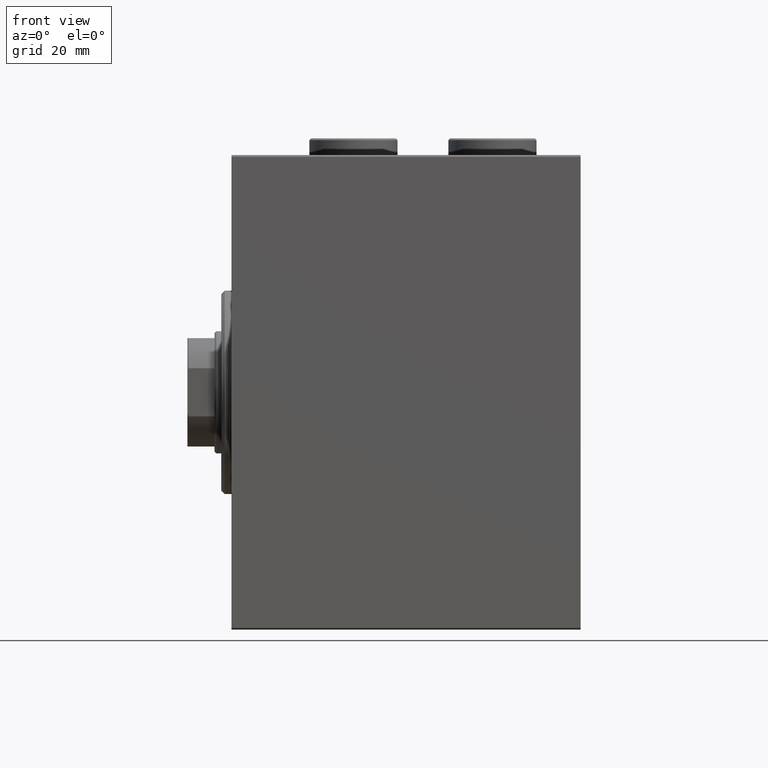
[diagram: clean part render]
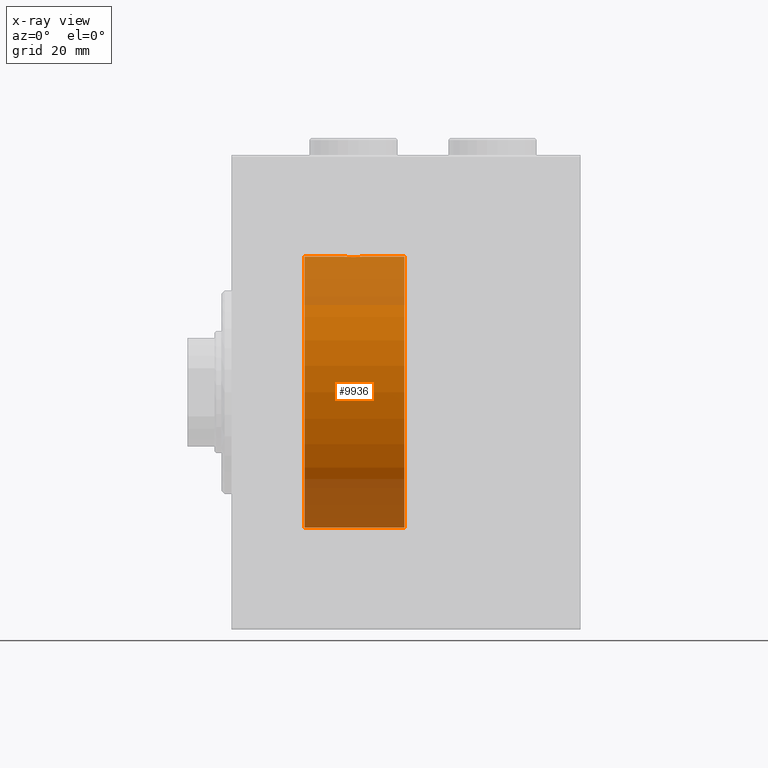
[diagram: x-ray — body ghosted, one internal face saturated and labeled with its STEP entity id]
A machine part, front view, then the same camera in x-ray: the body is ghosted and one INTERNAL B-rep face — a face not visible from any outside direction — is saturated and labeled: STEP entity #9936.
In plain terms, the highlighted cylindrical surface (partial cylindrical patch) has radius 40 mm, axis along (-1, -0, -0).
Its self-contained STEP definition (entity closure, byte-faithful):
#37 = VERTEX_POINT ( 'NONE', #36218 ) ;
#225 = CARTESIAN_POINT ( 'NONE',  ( 38.90425173651351543, -0.7773146824710984726, -39.99291453282344122 ) ) ;
#677 = CARTESIAN_POINT ( 'NONE',  ( 35.80439468926913804, -3.000157693440631324, -39.88732948994960026 ) ) ;
#774 = B_SPLINE_CURVE_WITH_KNOTS ( 'NONE', 3,
 ( #41025, #38028, #30449, #23773, #12962, #30223, #38260, #33910, #6754, #3292, #6523, #34821, #2386, #5845, #12739, #26766, #40795, #9276, #2834, #23309, #26986, #19870, #37345, #44481, #6075, #9512, #27212, #3065, #23542, #37578, #34362, #20101 ),
 .UNSPECIFIED., .F., .F.,
 ( 4, 2, 2, 2, 2, 2, 2, 2, 2, 2, 2, 2, 2, 2, 2, 4 ),
 ( 0.009382660366305094896, 0.009968941372944132434, 0.01055522237958316824, 0.01114150338622220404, 0.01172778439286124158, 0.01231406539950027912, 0.01290034640613931492, 0.01348662741277835073, 0.01407290841941738826, 0.01465918942605642580, 0.01524547043269546161, 0.01583175143933449741, 0.01641803244597353495, 0.01700431345261257249, 0.01759059445925161003, 0.01876315647252968163 ),
 .UNSPECIFIED. ) ;
#1171 = CARTESIAN_POINT ( 'NONE',  ( 51.00000000000000711, 0.000000000000000000, 40.00000000000000000 ) ) ;
#1359 = DIRECTION ( 'NONE',  ( -1.000000000000000000, 0.000000000000000000, 0.000000000000000000 ) ) ;
#2386 = CARTESIAN_POINT ( 'NONE',  ( 34.66775731134134730, -2.695129988695740053, 39.90917164320281785 ) ) ;
#2834 = CARTESIAN_POINT ( 'NONE',  ( 36.39109692509332916, -2.980812880639903906, 39.88879797994688658 ) ) ;
#3065 = CARTESIAN_POINT ( 'NONE',  ( 38.60188728128492386, -1.506322235190791226, 39.97196309111975410 ) ) ;
#3292 = CARTESIAN_POINT ( 'NONE',  ( 34.01538552187719233, -2.258217541132904849, 39.93644519243652979 ) ) ;
#5307 = CARTESIAN_POINT ( 'NONE',  ( 51.00000000000000711, 0.000000000000000000, 40.00000000000000000 ) ) ;
#5556 = EDGE_CURVE ( 'NONE', #37, #43692, #16543, .T. ) ;
#5845 = CARTESIAN_POINT ( 'NONE',  ( 35.03061658105534093, -2.845855236045346626, 39.89870693240651178 ) ) ;
#6075 = CARTESIAN_POINT ( 'NONE',  ( 37.98136279514228875, -2.261082456166712440, 39.93628274425758207 ) ) ;
#6523 = CARTESIAN_POINT ( 'NONE',  ( 34.16955177177597847, -2.384933850258112553, 39.92898715513240404 ) ) ;
#6584 = VECTOR ( 'NONE', #9192, 1000.000000000000000 ) ;
#6754 = CARTESIAN_POINT ( 'NONE',  ( 33.73902383005257377, -1.981471132463168638, 39.95113231465138881 ) ) ;
#7128 = CARTESIAN_POINT ( 'NONE',  ( 32.99999999999998579, -0.3964922677423637909, -39.99999999999998579 ) ) ;
#7476 = CARTESIAN_POINT ( 'NONE',  ( 21.60000000000000142, 4.898587196589413026E-15, -40.00000000000000000 ) ) ;
#7720 = DIRECTION ( 'NONE',  ( 0.000000000000000000, 0.000000000000000000, 1.000000000000000000 ) ) ;
#7804 = CARTESIAN_POINT ( 'NONE',  ( 38.98101877110926239, -0.3904143323715931757, -39.99856256910221219 ) ) ;
#8188 = ORIENTED_EDGE ( 'NONE', *, *, #20865, .F. ) ;
#8255 = ORIENTED_EDGE ( 'NONE', *, *, #32308, .T. ) ;
#8999 = CARTESIAN_POINT ( 'NONE',  ( 51.00000000000000711, 0.000000000000000000, 40.00000000000000000 ) ) ;
#9084 = VERTEX_POINT ( 'NONE', #8999 ) ;
#9192 = DIRECTION ( 'NONE',  ( -1.000000000000000000, -0.000000000000000000, -0.000000000000000000 ) ) ;
#9276 = CARTESIAN_POINT ( 'NONE',  ( 36.19560531073085485, -3.000157693440645090, 39.88732948994960026 ) ) ;
#9512 = CARTESIAN_POINT ( 'NONE',  ( 38.25829670320502629, -1.984537326394312018, 39.95097977400578060 ) ) ;
#9634 = AXIS2_PLACEMENT_3D ( 'NONE', #32874, #1359, #15391 ) ;
#9640 = DIRECTION ( 'NONE',  ( -1.000000000000000000, -0.000000000000000000, -0.000000000000000000 ) ) ;
#9936 = ADVANCED_FACE ( 'NONE', ( #39458 ), #22202, .F. ) ;
#10583 = CARTESIAN_POINT ( 'NONE',  ( 34.01863720485770415, -2.261082456166700005, -39.93628274425758917 ) ) ;
#10809 = CARTESIAN_POINT ( 'NONE',  ( 36.20041286019198168, -2.999840380514735116, -39.88735335562824957 ) ) ;
#11035 = CARTESIAN_POINT ( 'NONE',  ( 33.07973825008353685, -0.7903958539027382546, -39.99381900068937767 ) ) ;
#11775 = CARTESIAN_POINT ( 'NONE',  ( 39.00000000000000000, -4.750840494920854782E-16, 40.00000000000000000 ) ) ;
#11992 = LINE ( 'NONE', #5307, #6584 ) ;
#12304 = EDGE_CURVE ( 'NONE', #43692, #22536, #18419, .T. ) ;
#12739 = CARTESIAN_POINT ( 'NONE',  ( 35.22130476584258219, -2.903766417398241373, 39.89448096967571189 ) ) ;
#12826 = VERTEX_POINT ( 'NONE', #11775 ) ;
#12962 = CARTESIAN_POINT ( 'NONE',  ( 33.15334726986859692, -0.9668189122103379995, 39.98872185468384544 ) ) ;
#13107 = EDGE_CURVE ( 'NONE', #40347, #37, #24829, .T. ) ;
#13233 = EDGE_CURVE ( 'NONE', #35306, #9084, #18446, .T. ) ;
#13786 = CARTESIAN_POINT ( 'NONE',  ( 38.60433599912083480, -1.502129635934000396, -39.97212271185185273 ) ) ;
#14250 = CARTESIAN_POINT ( 'NONE',  ( 35.60890307490667794, -2.980812880639892359, -39.88879797994688658 ) ) ;
#14710 = CARTESIAN_POINT ( 'NONE',  ( 38.26097616994740491, -1.981471132463162643, -39.95113231465139592 ) ) ;
#15391 = DIRECTION ( 'NONE',  ( 0.000000000000000000, 0.000000000000000000, 1.000000000000000000 ) ) ;
#15622 = ORIENTED_EDGE ( 'NONE', *, *, #35545, .F. ) ;
#16543 = LINE ( 'NONE', #19996, #42486 ) ;
#17942 = CARTESIAN_POINT ( 'NONE',  ( 37.83044822822401443, -2.384933850258100119, -39.92898715513241115 ) ) ;
#18419 = CIRCLE ( 'NONE', #39029, 40.00000000000000000 ) ;
#18446 = CIRCLE ( 'NONE', #9634, 40.00000000000000000 ) ;
#18783 = CARTESIAN_POINT ( 'NONE',  ( 32.99999999999999289, -1.483452932268112700E-23, 40.00000000000000000 ) ) ;
#19851 = CARTESIAN_POINT ( 'NONE',  ( 39.00000000000000000, 4.898587181754971267E-15, -40.00000000000000000 ) ) ;
#19870 = CARTESIAN_POINT ( 'NONE',  ( 37.32853644746295885, -2.696981015661930936, 39.90904630908467254 ) ) ;
#19996 = CARTESIAN_POINT ( 'NONE',  ( 51.00000000000000711, 4.898587196589413026E-15, -40.00000000000000000 ) ) ;
#20101 = CARTESIAN_POINT ( 'NONE',  ( 39.00000000000000000, -4.750840494920854782E-16, 40.00000000000000000 ) ) ;
#20337 = EDGE_CURVE ( 'NONE', #22201, #12826, #774, .T. ) ;
#20610 = EDGE_LOOP ( 'NONE', ( #27632, #8255, #38175, #30167, #41882, #8188, #28070, #15622 ) ) ;
#20865 = EDGE_CURVE ( 'NONE', #22201, #22536, #11992, .T. ) ;
#20973 = CARTESIAN_POINT ( 'NONE',  ( 51.00000000000000711, 4.898587196589413026E-15, -40.00000000000000000 ) ) ;
#21613 = CARTESIAN_POINT ( 'NONE',  ( 34.17309815367588754, -2.387636253591812974, -39.92882473497732576 ) ) ;
#21836 = CARTESIAN_POINT ( 'NONE',  ( 36.96938341894465907, -2.845855236045336856, -39.89870693240651178 ) ) ;
#22039 = CARTESIAN_POINT ( 'NONE',  ( 21.60000000000000142, 0.000000000000000000, 0.000000000000000000 ) ) ;
#22201 = VERTEX_POINT ( 'NONE', #18783 ) ;
#22202 = CYLINDRICAL_SURFACE ( 'NONE', #37480, 40.00000000000000000 ) ;
#22536 = VERTEX_POINT ( 'NONE', #25120 ) ;
#23309 = CARTESIAN_POINT ( 'NONE',  ( 36.77455678826340346, -2.904869018727227470, 39.89440043036668726 ) ) ;
#23542 = CARTESIAN_POINT ( 'NONE',  ( 38.69537007708435539, -1.331594428131646302, 39.97823692017208685 ) ) ;
#23773 = CARTESIAN_POINT ( 'NONE',  ( 33.09574826348647036, -0.7773146824711030245, 39.99291453282344833 ) ) ;
#24384 = CARTESIAN_POINT ( 'NONE',  ( 35.03510674146484405, -2.847401743820449305, -39.89859630624607689 ) ) ;
#24606 = CARTESIAN_POINT ( 'NONE',  ( 35.22544321173658943, -2.904869018727217700, -39.89440043036668726 ) ) ;
#24829 = B_SPLINE_CURVE_WITH_KNOTS ( 'NONE', 3,
 ( #31281, #31510, #7804, #225, #35198, #41866, #13786, #31967, #14710, #39324, #17942, #28059, #27823, #21836, #42785, #35429, #10809, #677, #14250, #24606, #24384, #28513, #42558, #21613, #10583, #42325, #38643, #24833, #35653, #11035, #7128, #25060 ),
 .UNSPECIFIED., .F., .F.,
 ( 4, 2, 2, 2, 2, 2, 2, 2, 2, 2, 2, 2, 2, 2, 2, 4 ),
 ( 0.009382660366305110508, 0.009968941372944146312, 0.01055522237958318212, 0.01114150338622221792, 0.01172778439286125372, 0.01231406539950028953, 0.01290034640613932533, 0.01348662741277836113, 0.01407290841941739694, 0.01465918942605643274, 0.01524547043269546855, 0.01583175143933450435, 0.01641803244597354189, 0.01700431345261257596, 0.01759059445925161003, 0.01876315647252968163 ),
 .UNSPECIFIED. ) ;
#24833 = CARTESIAN_POINT ( 'NONE',  ( 33.39811271871507614, -1.506322235190781456, -39.97196309111974699 ) ) ;
#25060 = CARTESIAN_POINT ( 'NONE',  ( 32.99999999999999289, 4.605585004310627937E-15, -40.00000000000000000 ) ) ;
#25120 = CARTESIAN_POINT ( 'NONE',  ( 21.60000000000000142, 0.000000000000000000, 40.00000000000000000 ) ) ;
#25651 = DIRECTION ( 'NONE',  ( -1.000000000000000000, -0.000000000000000000, -0.000000000000000000 ) ) ;
#26766 = CARTESIAN_POINT ( 'NONE',  ( 35.60477516546423260, -2.980272303779554210, 39.88883864243167920 ) ) ;
#26986 = CARTESIAN_POINT ( 'NONE',  ( 36.96489325853514885, -2.847401743820463516, 39.89859630624608400 ) ) ;
#27212 = CARTESIAN_POINT ( 'NONE',  ( 38.38251680911463382, -1.833695109615725904, 39.95828327492363741 ) ) ;
#27632 = ORIENTED_EDGE ( 'NONE', *, *, #13233, .F. ) ;
#27823 = CARTESIAN_POINT ( 'NONE',  ( 37.33224268865864559, -2.695129988695729839, -39.90917164320280364 ) ) ;
#28059 = CARTESIAN_POINT ( 'NONE',  ( 37.50443082913466242, -2.602909538701748016, -39.91537030566259148 ) ) ;
#28070 = ORIENTED_EDGE ( 'NONE', *, *, #20337, .T. ) ;
#28513 = CARTESIAN_POINT ( 'NONE',  ( 34.67146355253704826, -2.696981015661917613, -39.90904630908468675 ) ) ;
#29400 = DIRECTION ( 'NONE',  ( 0.000000000000000000, 0.000000000000000000, 1.000000000000000000 ) ) ;
#30167 = ORIENTED_EDGE ( 'NONE', *, *, #5556, .T. ) ;
#30223 = CARTESIAN_POINT ( 'NONE',  ( 33.30278659419118981, -1.327859336864149364, 39.97836169682016561 ) ) ;
#30449 = CARTESIAN_POINT ( 'NONE',  ( 33.01898122889073761, -0.3904143323715978386, 39.99856256910221219 ) ) ;
#31281 = CARTESIAN_POINT ( 'NONE',  ( 39.00000000000000000, 4.898587181754971267E-15, -40.00000000000000000 ) ) ;
#31510 = CARTESIAN_POINT ( 'NONE',  ( 38.99999999999999289, -0.1957844162750510819, -40.00000000000000711 ) ) ;
#31967 = CARTESIAN_POINT ( 'NONE',  ( 38.38507600915353635, -1.830402106103512505, -39.95843610133493229 ) ) ;
#32308 = EDGE_CURVE ( 'NONE', #35306, #40347, #34033, .T. ) ;
#32626 = DIRECTION ( 'NONE',  ( -1.000000000000000000, 0.000000000000000000, 0.000000000000000000 ) ) ;
#32874 = CARTESIAN_POINT ( 'NONE',  ( 51.00000000000000711, 0.000000000000000000, 0.000000000000000000 ) ) ;
#33346 = DIRECTION ( 'NONE',  ( -1.000000000000000000, -0.000000000000000000, -0.000000000000000000 ) ) ;
#33910 = CARTESIAN_POINT ( 'NONE',  ( 33.61492399084645655, -1.830402106103517834, 39.95843610133493229 ) ) ;
#34033 = LINE ( 'NONE', #41147, #44996 ) ;
#34362 = CARTESIAN_POINT ( 'NONE',  ( 39.00000000000000000, -0.3964922677423686759, 40.00000000000000000 ) ) ;
#34821 = CARTESIAN_POINT ( 'NONE',  ( 34.49556917086534469, -2.602909538701760450, 39.91537030566259148 ) ) ;
#35198 = CARTESIAN_POINT ( 'NONE',  ( 38.84665273013138176, -0.9668189122103333366, -39.98872185468385254 ) ) ;
#35306 = VERTEX_POINT ( 'NONE', #20973 ) ;
#35429 = CARTESIAN_POINT ( 'NONE',  ( 36.39522483453576029, -2.980272303779541332, -39.88883864243169342 ) ) ;
#35545 = EDGE_CURVE ( 'NONE', #9084, #12826, #43504, .T. ) ;
#35653 = CARTESIAN_POINT ( 'NONE',  ( 33.30462992291564461, -1.331594428131640528, -39.97823692017208685 ) ) ;
#36218 = CARTESIAN_POINT ( 'NONE',  ( 32.99999999999999289, 4.605585004310627937E-15, -40.00000000000000000 ) ) ;
#37345 = CARTESIAN_POINT ( 'NONE',  ( 37.50088468404034359, -2.604941918888319385, 39.91523680494982784 ) ) ;
#37480 = AXIS2_PLACEMENT_3D ( 'NONE', #39910, #25651, #7720 ) ;
#37578 = CARTESIAN_POINT ( 'NONE',  ( 38.92026174991647736, -0.7903958539027412522, 39.99381900068937057 ) ) ;
#37697 = VECTOR ( 'NONE', #39818, 1000.000000000000000 ) ;
#38028 = CARTESIAN_POINT ( 'NONE',  ( 32.99999999999998579, -0.1957844162750546346, 39.99999999999999289 ) ) ;
#38175 = ORIENTED_EDGE ( 'NONE', *, *, #13107, .T. ) ;
#38260 = CARTESIAN_POINT ( 'NONE',  ( 33.39566400087915099, -1.502129635934003948, 39.97212271185185983 ) ) ;
#38643 = CARTESIAN_POINT ( 'NONE',  ( 33.61748319088535908, -1.833695109615714802, -39.95828327492363741 ) ) ;
#39029 = AXIS2_PLACEMENT_3D ( 'NONE', #22039, #32626, #29400 ) ;
#39324 = CARTESIAN_POINT ( 'NONE',  ( 37.98461447812278635, -2.258217541132897743, -39.93644519243654400 ) ) ;
#39458 = FACE_OUTER_BOUND ( 'NONE', #20610, .T. ) ;
#39818 = DIRECTION ( 'NONE',  ( -1.000000000000000000, -0.000000000000000000, -0.000000000000000000 ) ) ;
#39910 = CARTESIAN_POINT ( 'NONE',  ( 51.00000000000000711, 0.000000000000000000, 0.000000000000000000 ) ) ;
#40347 = VERTEX_POINT ( 'NONE', #19851 ) ;
#40795 = CARTESIAN_POINT ( 'NONE',  ( 35.79958713980801832, -2.999840380514748883, 39.88735335562824957 ) ) ;
#41025 = CARTESIAN_POINT ( 'NONE',  ( 32.99999999999999289, -1.483452932268112700E-23, 40.00000000000000000 ) ) ;
#41147 = CARTESIAN_POINT ( 'NONE',  ( 51.00000000000000711, 4.898587196589413026E-15, -40.00000000000000000 ) ) ;
#41866 = CARTESIAN_POINT ( 'NONE',  ( 38.69721340580881730, -1.327859336864144035, -39.97836169682019403 ) ) ;
#41882 = ORIENTED_EDGE ( 'NONE', *, *, #12304, .T. ) ;
#42325 = CARTESIAN_POINT ( 'NONE',  ( 33.74170329679496660, -1.984537326394300250, -39.95097977400577349 ) ) ;
#42486 = VECTOR ( 'NONE', #9640, 1000.000000000000000 ) ;
#42558 = CARTESIAN_POINT ( 'NONE',  ( 34.49911531595966352, -2.604941918888306507, -39.91523680494982784 ) ) ;
#42785 = CARTESIAN_POINT ( 'NONE',  ( 36.77869523415743913, -2.903766417398228938, -39.89448096967571900 ) ) ;
#43504 = LINE ( 'NONE', #1171, #37697 ) ;
#43692 = VERTEX_POINT ( 'NONE', #7476 ) ;
#44481 = CARTESIAN_POINT ( 'NONE',  ( 37.82690184632409824, -2.387636253591825408, 39.92882473497732576 ) ) ;
#44996 = VECTOR ( 'NONE', #33346, 1000.000000000000000 ) ;